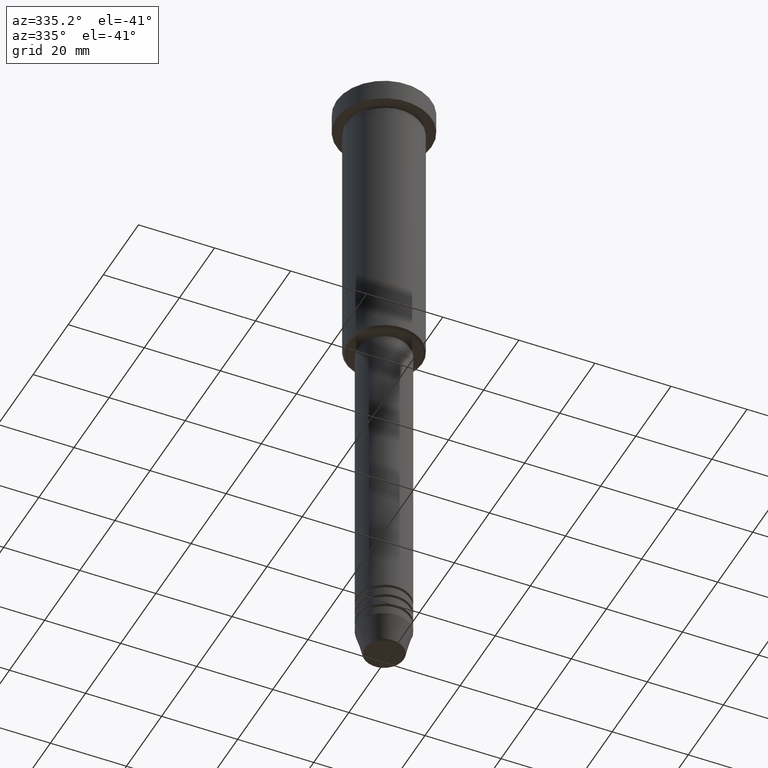
[diagram: clean part render]
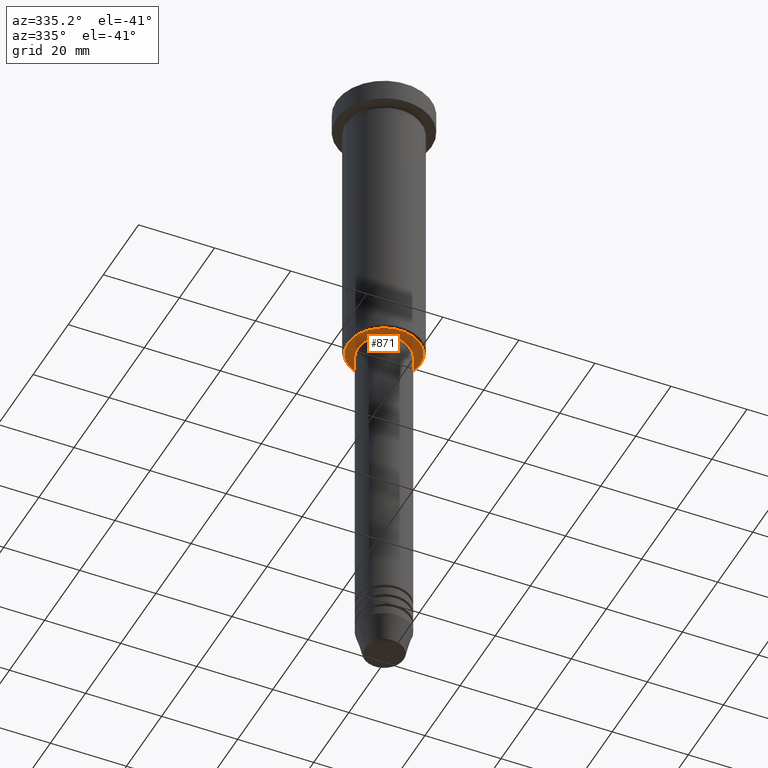
[diagram: same view with one face highlighted and labeled with its STEP entity id]
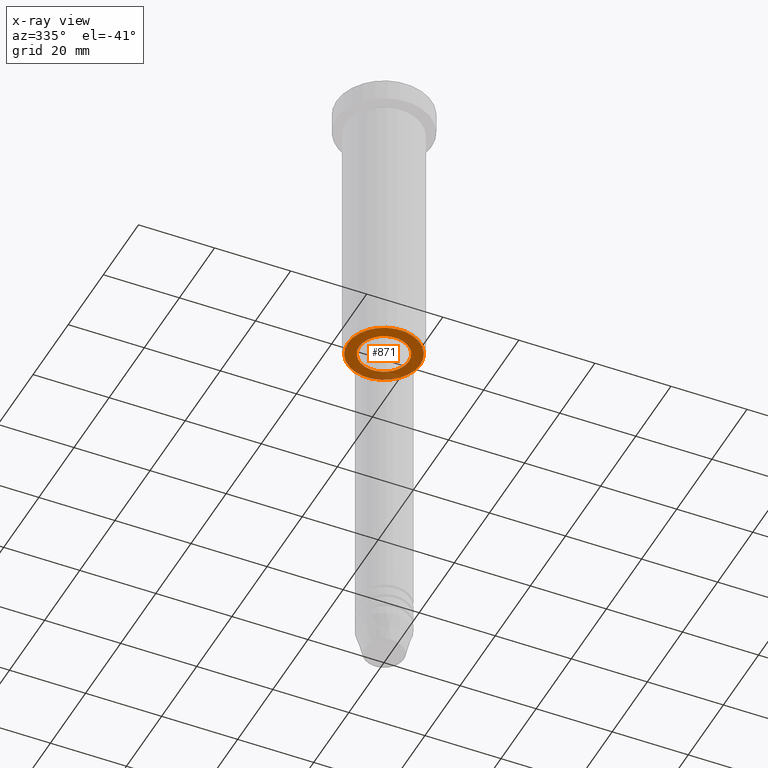
[diagram: x-ray of the same camera — body ghosted, the highlighted face saturated]
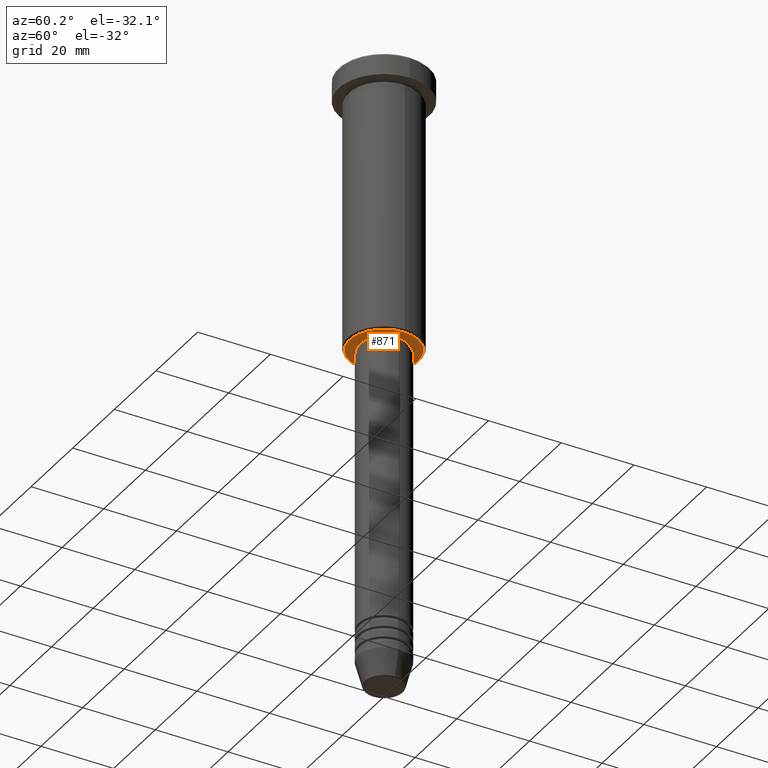
[diagram: same view with one face highlighted and labeled with its STEP entity id]
A machine part, auxiliary view. The second image highlights one B-rep face of the part: STEP entity #871.
The next image is the same camera in x-ray: the body ghosted, the highlighted face saturated — about 10% of this face is hidden behind the body in this view.
A second angle (auxiliary view) of the same face is appended — the face is thin or edge-on in the first view.
In plain terms, the highlighted planar face has unit normal (0, 0, -1).
Its self-contained STEP definition (entity closure, byte-faithful):
#40 = CARTESIAN_POINT ( 'NONE',  ( 0.000000000000000000, 10.00000000000000000, -76.00000000000000000 ) ) ;
#68 = AXIS2_PLACEMENT_3D ( 'NONE', #1171, #343, #722 ) ;
#74 = DIRECTION ( 'NONE',  ( 0.000000000000000000, 0.000000000000000000, -1.000000000000000000 ) ) ;
#101 = EDGE_LOOP ( 'NONE', ( #1105, #1117 ) ) ;
#127 = CARTESIAN_POINT ( 'NONE',  ( 0.000000000000000000, 0.000000000000000000, -76.00000000000000000 ) ) ;
#130 = DIRECTION ( 'NONE',  ( -1.000000000000000000, 0.000000000000000000, -0.000000000000000000 ) ) ;
#172 = DIRECTION ( 'NONE',  ( -1.000000000000000000, 0.000000000000000000, 0.000000000000000000 ) ) ;
#199 = VERTEX_POINT ( 'NONE', #1009 ) ;
#211 = DIRECTION ( 'NONE',  ( -1.000000000000000000, 0.000000000000000000, 0.000000000000000000 ) ) ;
#276 = EDGE_CURVE ( 'NONE', #859, #199, #1066, .T. ) ;
#290 = CIRCLE ( 'NONE', #1022, 6.500000000000000000 ) ;
#343 = DIRECTION ( 'NONE',  ( -0.000000000000000000, -0.000000000000000000, 1.000000000000000000 ) ) ;
#352 = EDGE_CURVE ( 'NONE', #1166, #1020, #388, .T. ) ;
#388 = CIRCLE ( 'NONE', #68, 6.500000000000000000 ) ;
#455 = CARTESIAN_POINT ( 'NONE',  ( 0.000000000000000000, 0.000000000000000000, -76.00000000000000000 ) ) ;
#470 = DIRECTION ( 'NONE',  ( 1.000000000000000000, 0.000000000000000000, 0.000000000000000000 ) ) ;
#526 = CARTESIAN_POINT ( 'NONE',  ( -9.499999999999994671, 1.194030629168669075E-15, -76.00000000000000000 ) ) ;
#534 = FACE_BOUND ( 'NONE', #101, .T. ) ;
#540 = EDGE_LOOP ( 'NONE', ( #1101, #1098 ) ) ;
#570 = DIRECTION ( 'NONE',  ( -0.000000000000000000, -0.000000000000000000, 1.000000000000000000 ) ) ;
#581 = CARTESIAN_POINT ( 'NONE',  ( -6.500000000000000000, 7.960204194457795477E-16, -76.00000000000000000 ) ) ;
#613 = PLANE ( 'NONE',  #886 ) ;
#664 = EDGE_CURVE ( 'NONE', #1020, #1166, #290, .T. ) ;
#680 = CARTESIAN_POINT ( 'NONE',  ( 0.000000000000000000, 0.000000000000000000, -76.00000000000000000 ) ) ;
#690 = EDGE_CURVE ( 'NONE', #199, #859, #945, .T. ) ;
#722 = DIRECTION ( 'NONE',  ( 1.000000000000000000, 0.000000000000000000, 0.000000000000000000 ) ) ;
#780 = DIRECTION ( 'NONE',  ( 0.000000000000000000, 0.000000000000000000, -1.000000000000000000 ) ) ;
#804 = FACE_OUTER_BOUND ( 'NONE', #540, .T. ) ;
#859 = VERTEX_POINT ( 'NONE', #526 ) ;
#871 = ADVANCED_FACE ( 'NONE', ( #804, #534 ), #613, .T. ) ;
#886 = AXIS2_PLACEMENT_3D ( 'NONE', #40, #780, #130 ) ;
#896 = CARTESIAN_POINT ( 'NONE',  ( 6.500000000000000000, 0.000000000000000000, -76.00000000000000000 ) ) ;
#945 = CIRCLE ( 'NONE', #1092, 9.499999999999994671 ) ;
#1009 = CARTESIAN_POINT ( 'NONE',  ( 9.499999999999994671, 0.000000000000000000, -76.00000000000000000 ) ) ;
#1019 = AXIS2_PLACEMENT_3D ( 'NONE', #127, #1131, #211 ) ;
#1020 = VERTEX_POINT ( 'NONE', #581 ) ;
#1022 = AXIS2_PLACEMENT_3D ( 'NONE', #455, #570, #470 ) ;
#1066 = CIRCLE ( 'NONE', #1019, 9.499999999999994671 ) ;
#1092 = AXIS2_PLACEMENT_3D ( 'NONE', #680, #74, #172 ) ;
#1098 = ORIENTED_EDGE ( 'NONE', *, *, #276, .T. ) ;
#1101 = ORIENTED_EDGE ( 'NONE', *, *, #690, .T. ) ;
#1105 = ORIENTED_EDGE ( 'NONE', *, *, #352, .T. ) ;
#1117 = ORIENTED_EDGE ( 'NONE', *, *, #664, .T. ) ;
#1131 = DIRECTION ( 'NONE',  ( 0.000000000000000000, 0.000000000000000000, -1.000000000000000000 ) ) ;
#1166 = VERTEX_POINT ( 'NONE', #896 ) ;
#1171 = CARTESIAN_POINT ( 'NONE',  ( 0.000000000000000000, 0.000000000000000000, -76.00000000000000000 ) ) ;